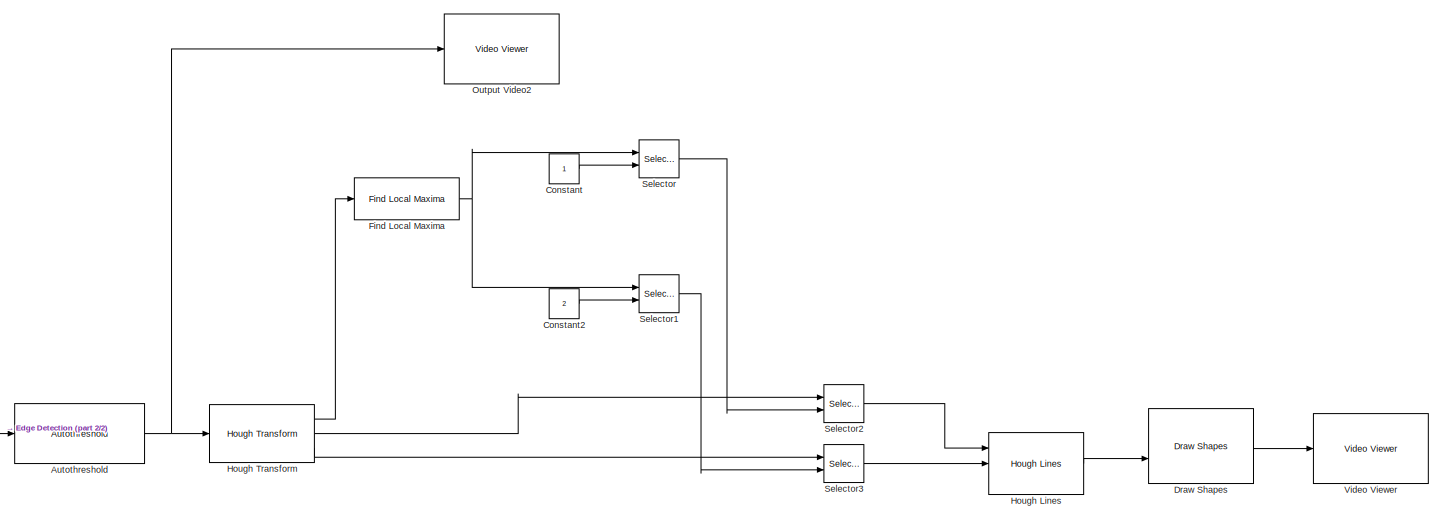
[diagram: root canvas - part 1/2, right side, full height]
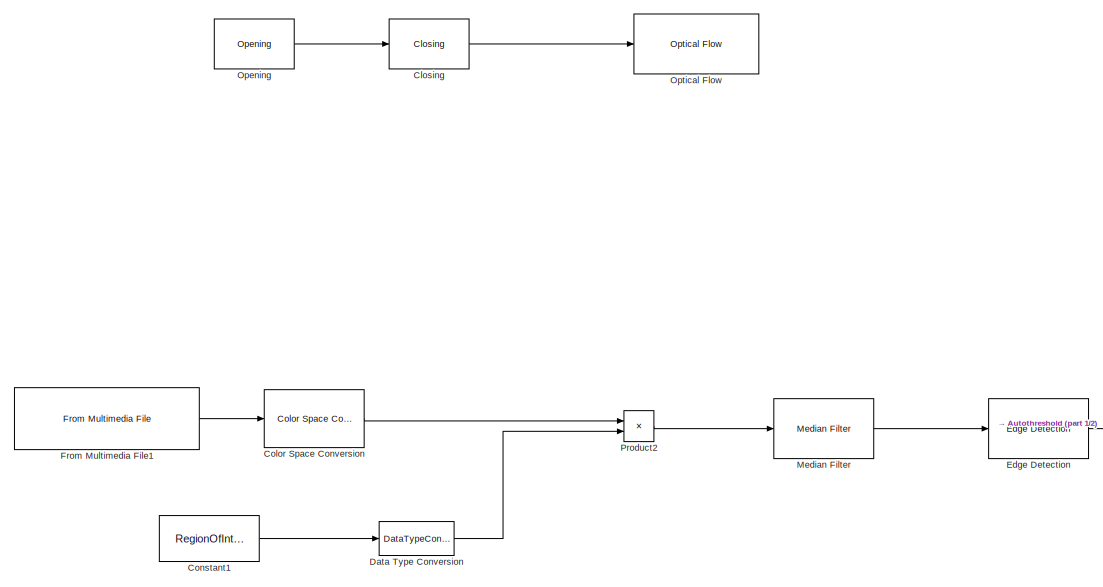
[diagram: root canvas - part 2/2, left side, full height]
MODEL slx_54cb3b459c57
KIND model
CONFIG AbsTol = auto
CONFIG FixedStep = auto
CONFIG MaxStep = auto
CONFIG MinStep = auto
CONFIG PreLoadFcn = load 'RegionInterest.mat'
CONFIG RelTol = 1e-3
CONFIG SampleTimeConstraint = Unconstrained
CONFIG Solver = ode45
CONFIG SolverMode = SingleTasking
CONFIG SolverName = ode45
CONFIG StartTime = 0.0
CONFIG StopTime = 17.0
BLOCK [Reference] Autothreshold  REF=visionconversions/Autothreshold
  A1FracLength = 30
  A1Mode = Same as Product 1
  A1WordLength = 32
  A2FracLength = 22
  A2Mode = Same as Product 2
  A2WordLength = 32
  A3FracLength = 14
  A3Mode = Same as Product 3
  A3WordLength = 32
  A4FracLength = 4
  A4Mode = Same as Product 4
  A4WordLength = 16
  EMFracLength = 14
  EMMode = Specify word length
  EMWordLength = 16
  LockScale = off
  P1FracLength = 30
  P1Mode = Specify word length
  P1WordLength = 32
  P2FracLength = 22
  P2Mode = Specify word length
  P2WordLength = 32
  P3FracLength = 14
  P3Mode = Specify word length
  P3WordLength = 32
  P4FracLength = 15
  P4Mode = Binary point scaling
  P4WordLength = 32
  Ports = [1, 1]
  Q1FracLength = 16
  Q1Mode = Specify word length
  Q1WordLength = 32
  SourceBlock = visionconversions/Autothreshold
  SourceType = Autothreshold
  effMetricOut = off
  operator = >
  outOfRngOpt = Warn and saturate
  overflowMode = off
  roundingMode = Floor
  scaleFactor = 1
  scaleThreshold = off
  threshOut = off
  umax = 255
  umin = 0
  userDefinedRange = off
BLOCK [Reference] Closing  REF=visionmorphops/Closing
  Commented = on
  Ports = [1, 1]
  SourceBlock = visionmorphops/Closing
  SourceType = Closing
  nhoodsrc = Specify via dialog
  strel = strel('line',5,45)
BLOCK [Reference] Color Space Conversion  REF=visionconversions/Color Space
 Conversion
  Ports = [1, 1]
  SourceBlock = visionconversions/Color Space\n Conversion
  SourceType = Color Space Conversion
  conversion = Obsolete
  conversionActive = R'G'B' to intensity
  imagePorts = One multidimensional signal
  rec = Rec. 709 (HDTV)
  sys = 1125/60/2:1
  wp_str = D65
BLOCK [Constant] Constant
BLOCK [Constant] Constant1
  Value = RegionOfInterest
BLOCK [Constant] Constant2
  Value = 2
BLOCK [DataTypeConversion] Data Type Conversion
  OutDataTypeStr = double
  RndMeth = Floor
  SaturateOnIntegerOverflow = off
BLOCK [Reference] Draw Shapes  REF=visiontextngfix/Draw Shapes
  LockScale = off
  Ports = [2, 1]
  SourceBlock = visiontextngfix/Draw Shapes
  SourceType = Draw Shapes
  accumFracLength = 14
  accumMode = Same as product output
  accumWordLength = 32
  antialiasing = off
  color = [255 0 0]
  display = White
  fill = on
  fillClrSource = Specify via dialog
  imagePorts = One multidimensional signal
  inType = Obsolete
  intensity = 200
  lineWidth = 4
  memoryFracLength = 14
  memoryMode = Specify word length
  memoryWordLength = 16
  opacity = 0.6
  overflowMode = off
  prodOutputFracLength = 14
  prodOutputMode = Binary point scaling
  prodOutputWordLength = 32
  roundingMode = Floor
  shape = Lines
  viewport = Entire image
BLOCK [Reference] Edge Detection  REF=visionanalysis/Edge Detection
  LockScale = off
  Ports = [1, 1]
  SourceBlock = visionanalysis/Edge Detection
  SourceType = Edge Detection
  accumFracLength = 8
  accumMode = Same as product output
  accumWordLength = 32
  autoPercent = 70
  edgeThinning = off
  method = Sobel
  outputFracLength = 4
  outputMode = Same as first input
  outputType = Binary image
  outputWordLength = 16
  overflowMode = off
  prodOutputFracLength = 8
  prodOutputMode = Binary point scaling
  prodOutputWordLength = 32
  roundingMode = Floor
  sigma = 1
  threshold = 20
  thresholdSource = Input port
  thresholdTuning = 4
  threshold_canny = [0.25 0.60]
  userDefinedThreshold = off
BLOCK [Reference] Find Local Maxima  REF=visionstatistics/Find Local Maxima
  Ports = [1, 1]
  SourceBlock = visionstatistics/Find Local Maxima
  SourceType = Find Local Maxima
  dt_count = uint32
  dt_peak = uint32
  inputIsHough = on
  isOutVarDim = on
  nhood_size = [5 7]
  num_peaks = 1
  src_thresh = Obsolete9b
  src_thresh_inuse = Specify via dialog
  threshold = 10
BLOCK [Reference] From Multimedia File1  REF=dspvision/From Multimedia File
  Ports = [0, 1]
  SourceBlock = dspvision/From Multimedia File
  SourceType = From Multimedia File
  audioDataType = int16
  audioFrameSize = 1024
  colorVideoFormat = One multidimensional signal
  computeAudioFrameSize = off
  dataOrg = Column-major
  fourcc = RGB
  inheritSampleTime = on
  inputFilename = <userpath>\Desktop\Video.mp4
  isIntensityVideo = off
  loop = on
  noAudioOutput = off
  numPlays = inf
  outSamplingMode = Sample based
  outputEOF = off
  outputStreams = Video only
  userDefinedSampleTime = 1/30
  videoDataType = single
BLOCK [Reference] Hough Lines  REF=visiontransforms/Hough Lines
  LockScale = off
  Ports = [3, 1]
  SourceBlock = visiontransforms/Hough Lines
  SourceType = Hough Lines
  accumFracLength = 16
  accumMode = Same as product output
  accumWordLength = 32
  firstCoeffFracLength = 15
  firstCoeffMode = Specify word length
  firstCoeffWordLength = 16
  overflowMode = on
  prodOutputFracLength = 16
  prodOutputMode = Binary point scaling
  prodOutputWordLength = 32
  roundingMode = Nearest
  sineCompMethod = Trigonometric function
  thetaRes = pi/180
BLOCK [Reference] Hough Transform  REF=visiontransforms/Hough Transform
  LockScale = off
  Ports = [1, 3]
  SourceBlock = visiontransforms/Hough Transform
  SourceType = Hough Transform
  accumFracLength = 20
  accumMode = Binary point scaling
  accumWordLength = 32
  firstCoeffFracLength = 14
  firstCoeffMode = Binary point scaling
  firstCoeffWordLength = 16
  memoryFracLength = 16
  memoryMode = Binary point scaling
  memoryWordLength = 32
  out_theta_rho = on
  outdtmode = double
  outputFracLength = 0
  outputMode = Binary point scaling
  outputWordLength = 16
  overflowMode = on
  prodOutputFracLength = 20
  prodOutputMode = Binary point scaling
  prodOutputWordLength = 32
  rho_res = 1
  roundingMode = Nearest
  secondCoeffFracLength = 16
  secondCoeffMode = Binary point scaling
  secondCoeffWordLength = 32
  theta_res = pi/180
BLOCK [Reference] Median Filter  REF=visionanalysis/Median Filter
  LockScale = off
  Ports = [1, 1]
  SourceBlock = visionanalysis/Median Filter
  SourceType = Median Filter
  accumFracLength = 30
  accumMode = Same as input
  accumWordLength = 32
  nghbood = [3 3]
  outSize = Same as input port I
  outputFracLength = 15
  outputMode = Same as input
  outputWordLength = 16
  overflowMode = off
  padSrc = Specify via dialog
  padType = Symmetric
  padVal = 0
  prodOutputFracLength = 30
  prodOutputMode = Same as input
  prodOutputWordLength = 32
  roundingMode = Floor
BLOCK [Reference] Opening  REF=visionmorphops/Opening
  Commented = on
  Ports = [1, 1]
  SourceBlock = visionmorphops/Opening
  SourceType = Opening
  nhoodsrc = Specify via dialog
  strel = strel('disk',5)
BLOCK [Reference] Optical Flow  REF=visionanalysis/Optical Flow
  Commented = on
  LockScale = off
  N = 3
  Ports = [1, 1]
  SourceBlock = visionanalysis/Optical Flow
  SourceType = Optical Flow
  accumFracLength = 20
  accumMode = Same as product output
  accumWordLength = 32
  discardNormalFlow = off
  eigTh = 0.0039
  firstCoeffFracLength = 12
  firstCoeffMode = Same word length as first input
  firstCoeffWordLength = 16
  gradMethod = Difference filter [-1 1]
  lambda = 1
  maxAllowAbsDiff = eps
  maxIter = 10
  memoryFracLength = 20
  memoryMode = Same as accumulator
  memoryWordLength = 32
  method = Horn-Schunck
  numInports = 3
  outVelForm = Magnitude-squared
  outputCurrentImage = off
  outputFracLength = 20
  outputMode = Binary point scaling
  outputWordLength = 32
  overflowMode = on
  prodOutputFracLength = 20
  prodOutputMode = Binary point scaling
  prodOutputWordLength = 32
  roundingMode = Nearest
  sigmaS = 1.5
  sigmaW = 1
  stop_criteria = When maximum number of iterations is reached
  which2img = Current frame and N-th frame back
BLOCK [Reference] Output Video2  REF=visionsinks/Video Viewer
  AxisZoom = on
  DefaultConfigurationName = vipscopes.VideoViewerScopeCfg
  FigPos = [2 1037 958 929]
  OpenAtMdlStart = on
  Ports = [1]
  SourceBlock = visionsinks/Video Viewer
  SourceType = Video Viewer
  UserDataPersistent = on
  colormapValue = gray(256)
  imagePorts = One multidimensional signal
  inputType = Obsolete7b
  maxInputVal = 255
  minInputVal = 0
  specRange = off
  trueSizedOnce = off
  useColorMap = off
BLOCK [Product] Product2
  InputSameDT = off
  OutDataTypeStr = Inherit: Inherit via internal rule
  Ports = [2, 1]
  RndMeth = Floor
  SaturateOnIntegerOverflow = off
BLOCK [Selector] Selector
  IndexOptions = Index vector (port)
  InputPortWidth = 2
  Ports = [2, 1]
BLOCK [Selector] Selector1
  IndexOptions = Index vector (port)
  InputPortWidth = 2
  Ports = [2, 1]
BLOCK [Selector] Selector2
  IndexOptions = Select all,Index vector (port)
  Indices = 1,1
  InputPortWidth = 2
  NumberOfDimensions = 2
  OutputSizes = 1,1
  Ports = [2, 1]
BLOCK [Selector] Selector3
  IndexOptions = Select all,Index vector (port)
  Indices = 1,1
  InputPortWidth = 2
  NumberOfDimensions = 2
  OutputSizes = 1,1
  Ports = [2, 1]
BLOCK [Reference] Video Viewer  REF=visionsinks/Video Viewer
  AxisZoom = on
  DefaultConfigurationName = vipscopes.VideoViewerScopeCfg
  FigPos = [962 1037 958 929]
  OpenAtMdlStart = on
  Ports = [1]
  SourceBlock = visionsinks/Video Viewer
  SourceType = Video Viewer
  UserDataPersistent = on
  colormapValue = gray(256)
  imagePorts = One multidimensional signal
  inputType = Obsolete7b
  maxInputVal = 255
  minInputVal = 0
  specRange = off
  trueSizedOnce = off
  useColorMap = off
NET Autothreshold:1 -> Hough Transform:1, Output Video2:1
LINE Closing:1 -> Optical Flow:1
LINE Color Space Conversion:1 -> Product2:1
LINE Constant1:1 -> Data Type Conversion:1
LINE Constant2:1 -> Selector1:2
LINE Constant:1 -> Selector:2
LINE Data Type Conversion:1 -> Product2:2
LINE Draw Shapes:1 -> Video Viewer:1
LINE Edge Detection:1 -> Autothreshold:1
NET Find Local Maxima:1 -> Selector1:1, Selector:1
LINE From Multimedia File1:1 -> Color Space Conversion:1
LINE Hough Lines:1 -> Draw Shapes:2
LINE Hough Transform:1 -> Find Local Maxima:1
LINE Hough Transform:2 -> Selector2:1
LINE Hough Transform:3 -> Selector3:1
LINE Median Filter:1 -> Edge Detection:1
LINE Opening:1 -> Closing:1
LINE Product2:1 -> Median Filter:1
LINE Selector1:1 -> Selector3:2
LINE Selector2:1 -> Hough Lines:1
LINE Selector3:1 -> Hough Lines:2
LINE Selector:1 -> Selector2:2
note: NET lines group one-source signal fan-out (src -> all destinations, sorted); 1:1 wires keep LINE
